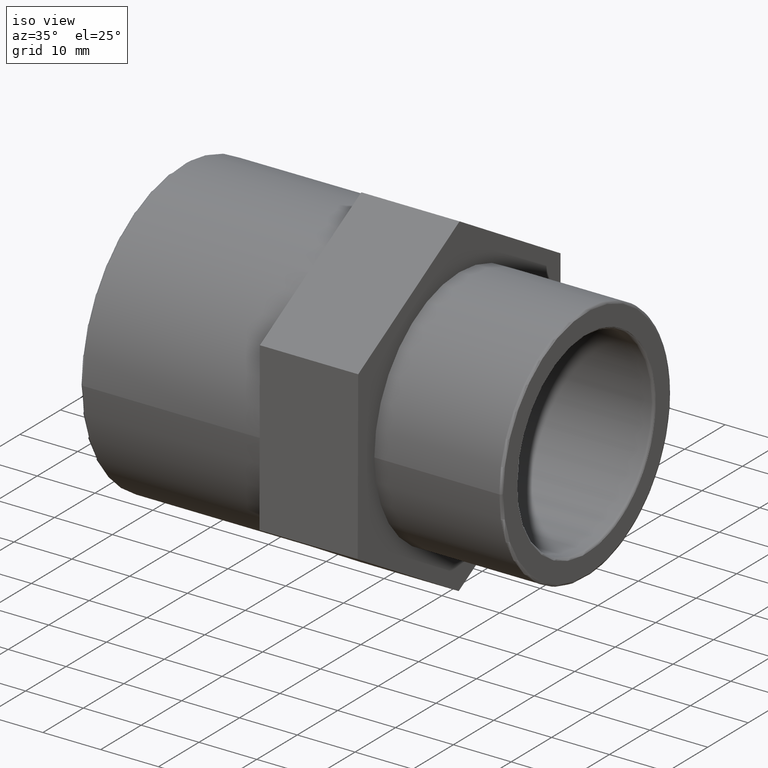
[diagram: clean part render]
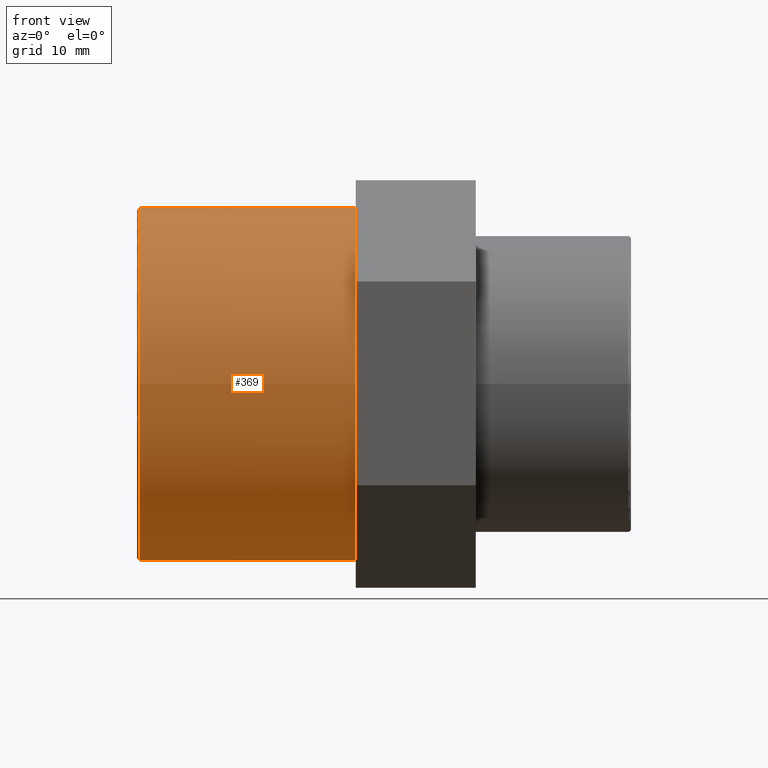
[diagram: tour spotlight — one face highlighted and labeled with its STEP entity id]
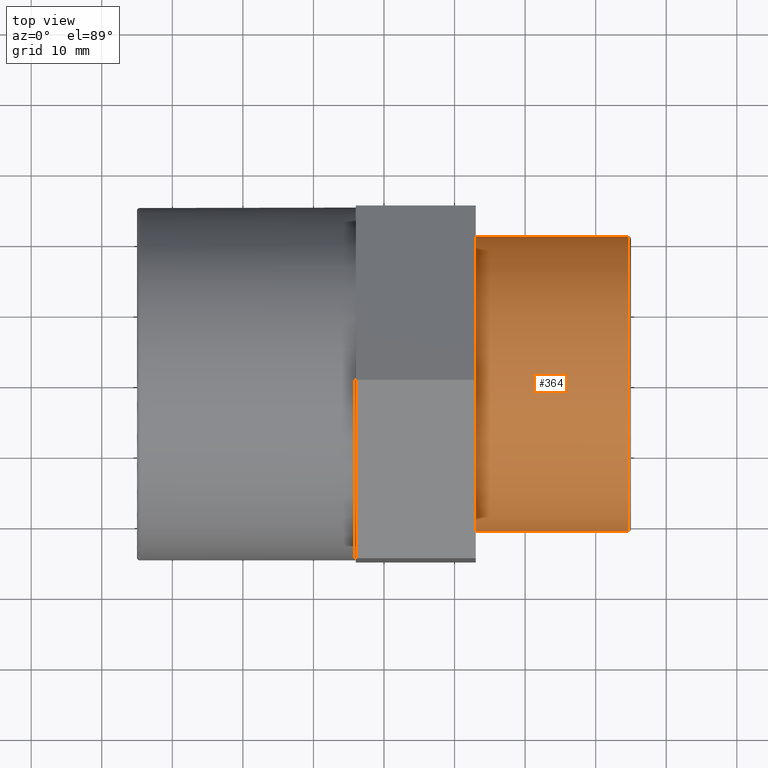
[diagram: tour spotlight — one face highlighted and labeled with its STEP entity id]
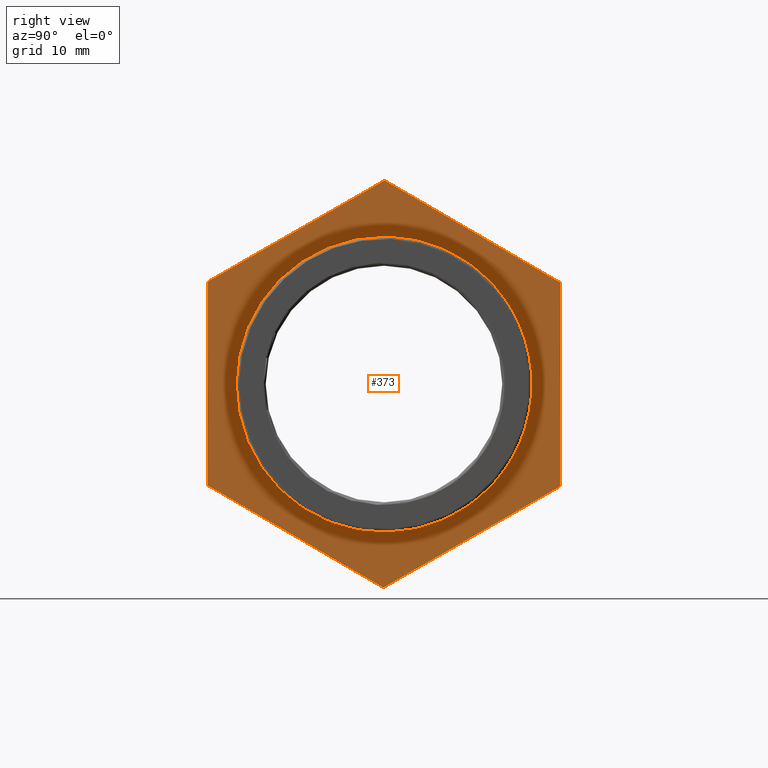
[diagram: tour spotlight — one face highlighted and labeled with its STEP entity id]
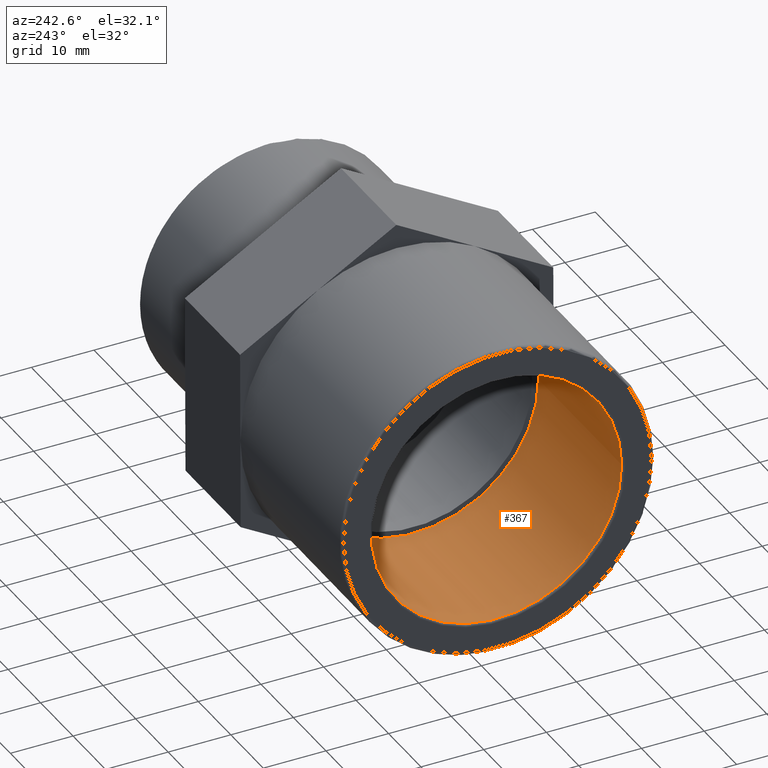
[diagram: tour spotlight — one face highlighted and labeled with its STEP entity id]
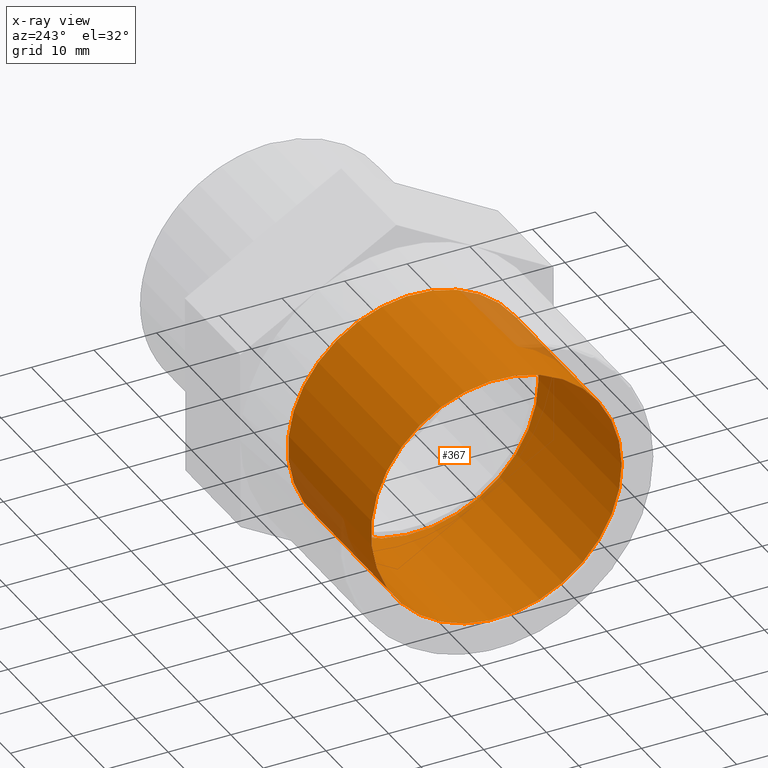
[diagram: x-ray of the same camera — body ghosted, this tour face saturated]
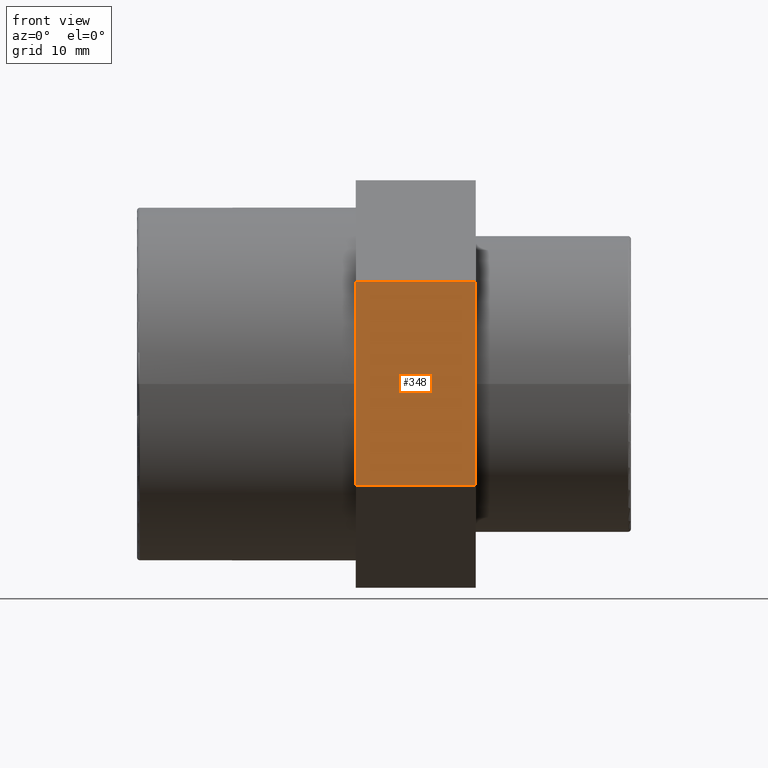
[diagram: tour spotlight — one face highlighted and labeled with its STEP entity id]
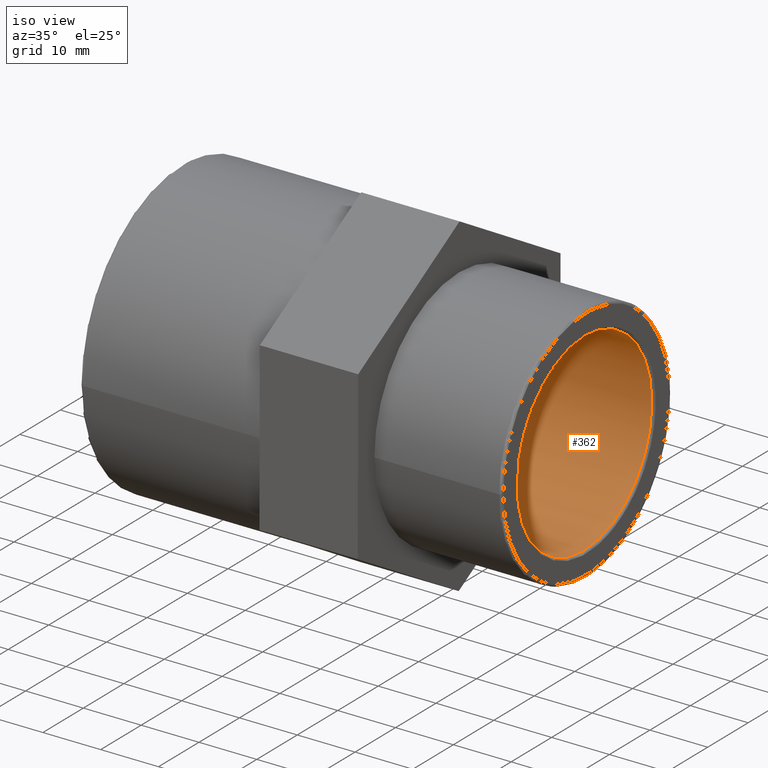
[diagram: tour spotlight — one face highlighted and labeled with its STEP entity id]
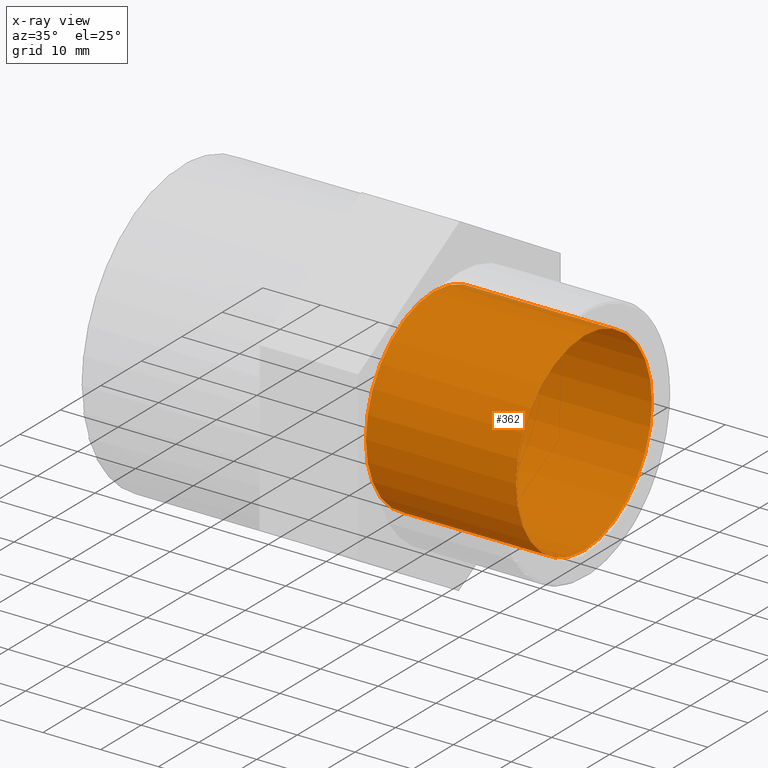
[diagram: x-ray of the same camera — body ghosted, this tour face saturated]
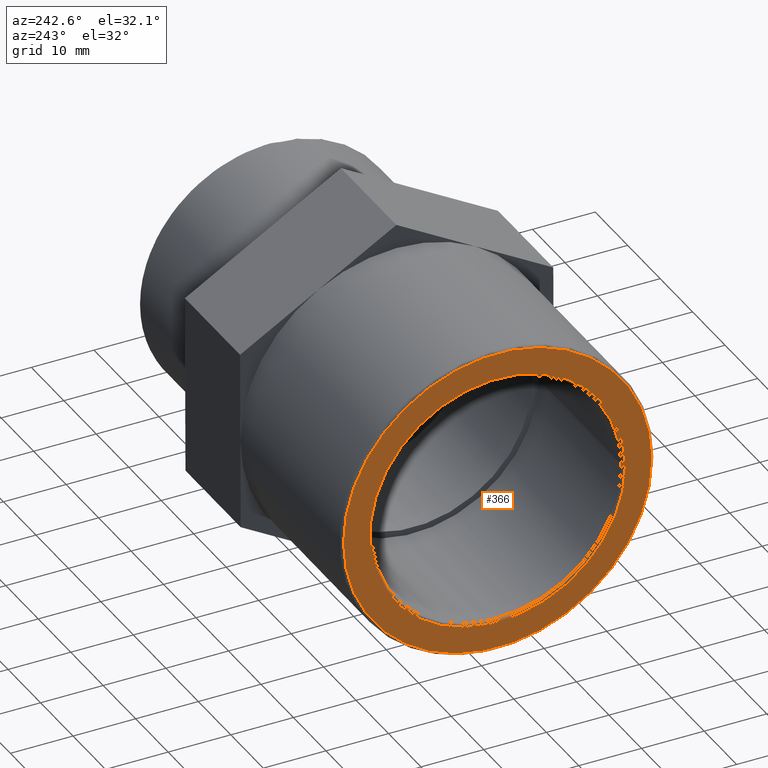
[diagram: tour spotlight — one face highlighted and labeled with its STEP entity id]
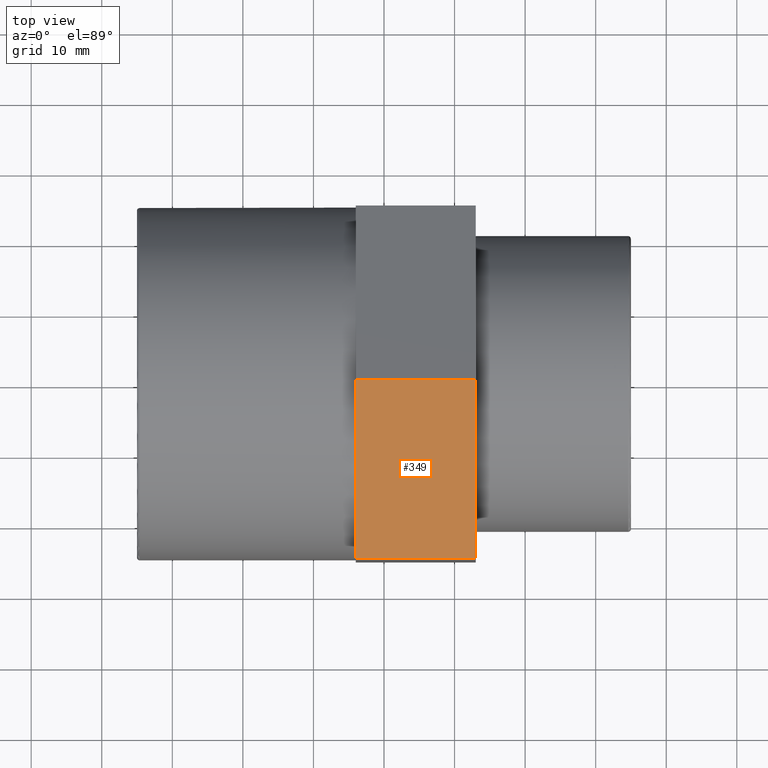
[diagram: tour spotlight — one face highlighted and labeled with its STEP entity id]
A machine part: a face-by-face anatomy tour. The part has 26 B-rep faces; the first image is the clean iso view, then the 8 largest visible faces are spotlighted one at a time (largest first), each with its STEP entity span.

Face 1 — front view, entity #369. In plain terms, the highlighted cylindrical surface (bore or boss wall) has radius 25 mm, axis along (-1, -0, 0).
Definition (entity closure, byte-faithful):
#18=CYLINDRICAL_SURFACE('',#414,25.);
#29=FACE_BOUND('',#114,.T.);
#38=CIRCLE('',#380,25.);
#39=CIRCLE('',#382,25.);
#40=CIRCLE('',#384,25.);
#41=CIRCLE('',#386,25.);
#42=CIRCLE('',#388,25.);
#43=CIRCLE('',#390,25.);
#54=CIRCLE('',#413,25.);
#78=FACE_OUTER_BOUND('',#113,.T.);
#113=EDGE_LOOP('',(#311,#312,#313,#314,#315,#316));
#114=EDGE_LOOP('',(#317));
#174=VERTEX_POINT('',#544);
#178=VERTEX_POINT('',#554);
#181=VERTEX_POINT('',#562);
#182=VERTEX_POINT('',#566);
#183=VERTEX_POINT('',#574);
#184=VERTEX_POINT('',#578);
#199=VERTEX_POINT('',#627);
#215=EDGE_CURVE('',#181,#182,#38,.T.);
#217=EDGE_CURVE('',#178,#181,#39,.T.);
#218=EDGE_CURVE('',#174,#178,#40,.T.);
#219=EDGE_CURVE('',#183,#174,#41,.T.);
#221=EDGE_CURVE('',#184,#183,#42,.T.);
#224=EDGE_CURVE('',#182,#184,#43,.T.);
#242=EDGE_CURVE('',#199,#199,#54,.T.);
#311=ORIENTED_EDGE('',*,*,#215,.T.);
#312=ORIENTED_EDGE('',*,*,#224,.T.);
#313=ORIENTED_EDGE('',*,*,#221,.T.);
#314=ORIENTED_EDGE('',*,*,#219,.T.);
#315=ORIENTED_EDGE('',*,*,#218,.T.);
#316=ORIENTED_EDGE('',*,*,#217,.T.);
#317=ORIENTED_EDGE('',*,*,#242,.F.);
#369=ADVANCED_FACE('',(#78,#29),#18,.T.);
#380=AXIS2_PLACEMENT_3D('',#567,#444,#445);
#382=AXIS2_PLACEMENT_3D('',#570,#449,#450);
#384=AXIS2_PLACEMENT_3D('',#572,#453,#454);
#386=AXIS2_PLACEMENT_3D('',#575,#457,#458);
#388=AXIS2_PLACEMENT_3D('',#579,#462,#463);
#390=AXIS2_PLACEMENT_3D('',#584,#468,#469);
#413=AXIS2_PLACEMENT_3D('',#628,#521,#522);
#414=AXIS2_PLACEMENT_3D('',#629,#523,#524);
#444=DIRECTION('center_axis',(-1.,-6.73555739531044E-16,-3.25955538390483E-32));
#445=DIRECTION('ref_axis',(6.66133814775094E-16,-1.,0.));
#449=DIRECTION('center_axis',(-1.,-6.73555739531044E-16,-3.25955538390483E-32));
#450=DIRECTION('ref_axis',(6.66133814775094E-16,-1.,0.));
#453=DIRECTION('center_axis',(-1.,-6.73555739531044E-16,-3.25955538390483E-32));
#454=DIRECTION('ref_axis',(6.66133814775094E-16,-1.,0.));
#457=DIRECTION('center_axis',(-1.,-6.73555739531044E-16,-3.25955538390483E-32));
#458=DIRECTION('ref_axis',(6.66133814775094E-16,-1.,0.));
#462=DIRECTION('center_axis',(-1.,-6.73555739531044E-16,-3.25955538390483E-32));
#463=DIRECTION('ref_axis',(6.66133814775094E-16,-1.,0.));
#468=DIRECTION('center_axis',(-1.,-6.73555739531044E-16,-3.25955538390483E-32));
#469=DIRECTION('ref_axis',(6.66133814775094E-16,-1.,0.));
#521=DIRECTION('center_axis',(-1.,-6.73555739531044E-16,0.));
#522=DIRECTION('ref_axis',(-6.74460487459783E-16,1.,6.12323399573677E-17));
#523=DIRECTION('center_axis',(-1.,-6.73555739531044E-16,0.));
#524=DIRECTION('ref_axis',(6.66133814775094E-16,-1.,0.));
#544=CARTESIAN_POINT('',(-4.,-24.9998362601667,0.0904818482153302));
#554=CARTESIAN_POINT('',(-4.,-12.4215585509475,21.6957342158633));
#562=CARTESIAN_POINT('',(-4.00000000000002,12.5782777092192,21.605252367648));
#566=CARTESIAN_POINT('',(-4.00000000000003,24.9998362601667,-0.0904818482152971));
#567=CARTESIAN_POINT('Origin',(-4.00000000000001,3.73517273739942E-15,0.));
#570=CARTESIAN_POINT('Origin',(-4.00000000000001,3.73517273739942E-15,0.));
#572=CARTESIAN_POINT('Origin',(-4.00000000000001,3.73517273739942E-15,0.));
#574=CARTESIAN_POINT('',(-4.,-12.5782777092192,-21.605252367648));
#575=CARTESIAN_POINT('Origin',(-4.00000000000001,3.73517273739942E-15,0.));
#578=CARTESIAN_POINT('',(-4.00000000000002,12.4215585509475,-21.6957342158633));
#579=CARTESIAN_POINT('Origin',(-4.00000000000001,3.73517273739942E-15,0.));
#584=CARTESIAN_POINT('Origin',(-4.00000000000001,3.73517273739942E-15,0.));
#627=CARTESIAN_POINT('',(-34.6,-25.,1.53080849893419E-15));
#628=CARTESIAN_POINT('Origin',(-34.6,-1.68756328922505E-14,0.));
#629=CARTESIAN_POINT('Origin',(-19.5,-6.70494122533177E-15,0.));

Face 2 — top view, entity #364. In plain terms, the highlighted cylindrical surface (bore or boss wall) has radius 20.955 mm, axis along (-1, -0, 0).
Definition (entity closure, byte-faithful):
#16=CYLINDRICAL_SURFACE('',#403,20.955);
#24=FACE_BOUND('',#104,.T.);
#48=CIRCLE('',#402,20.955);
#49=CIRCLE('',#404,20.955);
#73=FACE_OUTER_BOUND('',#103,.T.);
#103=EDGE_LOOP('',(#301));
#104=EDGE_LOOP('',(#302));
#193=VERTEX_POINT('',#610);
#194=VERTEX_POINT('',#613);
#236=EDGE_CURVE('',#193,#193,#48,.T.);
#237=EDGE_CURVE('',#194,#194,#49,.T.);
#301=ORIENTED_EDGE('',*,*,#237,.F.);
#302=ORIENTED_EDGE('',*,*,#236,.F.);
#364=ADVANCED_FACE('',(#73,#24),#16,.T.);
#402=AXIS2_PLACEMENT_3D('',#611,#499,#500);
#403=AXIS2_PLACEMENT_3D('',#612,#501,#502);
#404=AXIS2_PLACEMENT_3D('',#614,#503,#504);
#499=DIRECTION('center_axis',(1.,6.73555739531044E-16,0.));
#500=DIRECTION('ref_axis',(-6.72200172986479E-16,1.,6.12323399573677E-17));
#501=DIRECTION('center_axis',(-1.,-6.73555739531044E-16,0.));
#502=DIRECTION('ref_axis',(6.66133814775094E-16,-1.,0.));
#503=DIRECTION('center_axis',(-1.,-6.73555739531044E-16,0.));
#504=DIRECTION('ref_axis',(0.,0.,1.));
#610=CARTESIAN_POINT('',(34.6,-20.955,-3.84937105141992E-15));
#611=CARTESIAN_POINT('Origin',(34.6,2.97344242832977E-14,0.));
#612=CARTESIAN_POINT('Origin',(24.,2.25947334442687E-14,0.));
#613=CARTESIAN_POINT('',(13.,-20.955,0.));
#614=CARTESIAN_POINT('Origin',(13.,1.51856203094272E-14,0.));

Face 3 — right view, entity #373. In plain terms, the highlighted planar face has unit normal (1, 0, 0).
Definition (entity closure, byte-faithful):
#33=FACE_BOUND('',#122,.T.);
#49=CIRCLE('',#404,20.955);
#82=FACE_OUTER_BOUND('',#121,.T.);
#121=EDGE_LOOP('',(#324,#325,#326,#327,#328,#329));
#122=EDGE_LOOP('',(#330));
#123=LINE('',#541,#147);
#128=LINE('',#551,#152);
#132=LINE('',#559,#156);
#142=LINE('',#591,#166);
#145=LINE('',#595,#169);
#146=LINE('',#597,#170);
#147=VECTOR('',#425,28.8675134594813);
#152=VECTOR('',#432,28.8675134594813);
#156=VECTOR('',#438,28.8675134594813);
#166=VECTOR('',#474,28.8675134594813);
#169=VECTOR('',#479,28.8675134594813);
#170=VECTOR('',#482,28.8675134594813);
#171=VERTEX_POINT('',#539);
#172=VERTEX_POINT('',#540);
#176=VERTEX_POINT('',#550);
#179=VERTEX_POINT('',#558);
#187=VERTEX_POINT('',#589);
#188=VERTEX_POINT('',#590);
#194=VERTEX_POINT('',#613);
#202=EDGE_CURVE('',#171,#172,#123,.T.);
#207=EDGE_CURVE('',#172,#176,#128,.T.);
#211=EDGE_CURVE('',#176,#179,#132,.T.);
#227=EDGE_CURVE('',#187,#188,#142,.T.);
#230=EDGE_CURVE('',#188,#171,#145,.T.);
#231=EDGE_CURVE('',#179,#187,#146,.T.);
#237=EDGE_CURVE('',#194,#194,#49,.T.);
#324=ORIENTED_EDGE('',*,*,#230,.F.);
#325=ORIENTED_EDGE('',*,*,#227,.F.);
#326=ORIENTED_EDGE('',*,*,#231,.F.);
#327=ORIENTED_EDGE('',*,*,#211,.F.);
#328=ORIENTED_EDGE('',*,*,#207,.F.);
#329=ORIENTED_EDGE('',*,*,#202,.F.);
#330=ORIENTED_EDGE('',*,*,#237,.T.);
#347=PLANE('',#420);
#373=ADVANCED_FACE('',(#82,#33),#347,.T.);
#404=AXIS2_PLACEMENT_3D('',#614,#503,#504);
#420=AXIS2_PLACEMENT_3D('',#637,#535,#536);
#425=DIRECTION('',(-2.43778272755254E-18,0.00361927392861327,0.999993450406666));
#432=DIRECTION('',(-5.84531452177392E-16,0.867829368634533,0.496862342037901));
#438=DIRECTION('',(-5.8209366944984E-16,0.864210094705921,-0.503131108368766));
#474=DIRECTION('',(5.84531452177392E-16,-0.867829368634533,-0.4968623420379));
#479=DIRECTION('',(5.8209366944984E-16,-0.864210094705921,0.503131108368766));
#482=DIRECTION('',(2.4377827275516E-18,-0.00361927392861188,-0.999993450406666));
#503=DIRECTION('center_axis',(-1.,-6.73555739531044E-16,0.));
#504=DIRECTION('ref_axis',(0.,0.,1.));
#535=DIRECTION('center_axis',(1.,6.73555739531044E-16,0.));
#536=DIRECTION('ref_axis',(0.,0.,-1.));
#539=CARTESIAN_POINT('',(13.,-25.0520759795906,-14.3431803462885));
#540=CARTESIAN_POINT('',(13.,-24.9475965407428,14.5241440427191));
#541=CARTESIAN_POINT('',(13.,-24.9737164004547,7.30731294546721));
#550=CARTESIAN_POINT('',(13.,0.104479438847789,28.8673243890076));
#551=CARTESIAN_POINT('',(13.,-6.15853955604986,25.2815293024355));
#558=CARTESIAN_POINT('',(13.,25.0520759795906,14.3431803462885));
#559=CARTESIAN_POINT('',(13.,18.8151768444049,17.9742163569683));
#589=CARTESIAN_POINT('',(13.,24.9475965407428,-14.5241440427191));
#590=CARTESIAN_POINT('',(13.,-0.104479438847757,-28.8673243890076));
#591=CARTESIAN_POINT('',(13.,6.15853955604988,-25.2815293024355));
#595=CARTESIAN_POINT('',(13.,-18.8151768444049,-17.9742163569683));
#597=CARTESIAN_POINT('',(13.,24.9998362601667,-0.0904818482152943));
#613=CARTESIAN_POINT('',(13.,-20.955,0.));
#614=CARTESIAN_POINT('Origin',(13.,1.51856203094272E-14,0.));
#637=CARTESIAN_POINT('Origin',(13.,-25.,0.));

Face 4 — auxiliary view, entity #367. An x-ray twin of the same camera follows (body ghosted, this face saturated) — the face is partly hidden behind the body. In plain terms, the highlighted cylindrical surface (bore or boss wall) has radius 20 mm, axis along (-1, -0, 0).
Definition (entity closure, byte-faithful):
#17=CYLINDRICAL_SURFACE('',#410,20.);
#27=FACE_BOUND('',#110,.T.);
#51=CIRCLE('',#407,20.);
#53=CIRCLE('',#411,20.);
#76=FACE_OUTER_BOUND('',#109,.T.);
#109=EDGE_LOOP('',(#307));
#110=EDGE_LOOP('',(#308));
#196=VERTEX_POINT('',#618);
#198=VERTEX_POINT('',#624);
#239=EDGE_CURVE('',#196,#196,#51,.T.);
#241=EDGE_CURVE('',#198,#198,#53,.T.);
#307=ORIENTED_EDGE('',*,*,#241,.F.);
#308=ORIENTED_EDGE('',*,*,#239,.F.);
#367=ADVANCED_FACE('',(#76,#27),#17,.F.);
#407=AXIS2_PLACEMENT_3D('',#619,#509,#510);
#410=AXIS2_PLACEMENT_3D('',#623,#515,#516);
#411=AXIS2_PLACEMENT_3D('',#625,#517,#518);
#509=DIRECTION('center_axis',(1.,6.73555739531044E-16,0.));
#510=DIRECTION('ref_axis',(-6.73072708679001E-16,1.,6.12323399573677E-17));
#515=DIRECTION('center_axis',(-1.,-6.73555739531044E-16,0.));
#516=DIRECTION('ref_axis',(6.66133814775094E-16,-1.,0.));
#517=DIRECTION('center_axis',(-1.,-6.73555739531044E-16,0.));
#518=DIRECTION('ref_axis',(0.,0.,1.));
#618=CARTESIAN_POINT('',(-34.6,-20.,-3.67394039744206E-15));
#619=CARTESIAN_POINT('Origin',(-34.6,-1.68756328922505E-14,0.));
#623=CARTESIAN_POINT('Origin',(-22.,-8.38883057415938E-15,0.));
#624=CARTESIAN_POINT('',(-9.,-20.,0.));
#625=CARTESIAN_POINT('Origin',(-9.00000000000001,3.67394039744199E-16,0.));

Face 5 — front view, entity #348. In plain terms, the highlighted planar face has unit normal (0, -1, 0.0036).
Definition (entity closure, byte-faithful):
#57=FACE_OUTER_BOUND('',#83,.T.);
#83=EDGE_LOOP('',(#245,#246,#247,#248,#249));
#123=LINE('',#541,#147);
#124=LINE('',#543,#148);
#125=LINE('',#545,#149);
#126=LINE('',#547,#150);
#127=LINE('',#548,#151);
#147=VECTOR('',#425,28.8675134594813);
#148=VECTOR('',#426,17.);
#149=VECTOR('',#427,14.4337567297406);
#150=VECTOR('',#428,14.4337567297407);
#151=VECTOR('',#429,17.);
#171=VERTEX_POINT('',#539);
#172=VERTEX_POINT('',#540);
#173=VERTEX_POINT('',#542);
#174=VERTEX_POINT('',#544);
#175=VERTEX_POINT('',#546);
#202=EDGE_CURVE('',#171,#172,#123,.T.);
#203=EDGE_CURVE('',#173,#172,#124,.T.);
#204=EDGE_CURVE('',#173,#174,#125,.T.);
#205=EDGE_CURVE('',#174,#175,#126,.T.);
#206=EDGE_CURVE('',#175,#171,#127,.T.);
#245=ORIENTED_EDGE('',*,*,#202,.T.);
#246=ORIENTED_EDGE('',*,*,#203,.F.);
#247=ORIENTED_EDGE('',*,*,#204,.T.);
#248=ORIENTED_EDGE('',*,*,#205,.T.);
#249=ORIENTED_EDGE('',*,*,#206,.T.);
#331=PLANE('',#376);
#348=ADVANCED_FACE('',(#57),#331,.T.);
#376=AXIS2_PLACEMENT_3D('',#538,#423,#424);
#423=DIRECTION('center_axis',(6.96605962739337E-16,-0.999993450406666,0.00361927392861327));
#424=DIRECTION('ref_axis',(0.,-0.00361927392861325,-0.999993450406666));
#425=DIRECTION('',(-2.43778272755254E-18,0.00361927392861327,0.999993450406666));
#426=DIRECTION('',(1.,6.9661052525499E-16,0.));
#427=DIRECTION('',(2.43778272755254E-18,-0.00361927392861327,-0.999993450406666));
#428=DIRECTION('',(2.43778272755254E-18,-0.00361927392861327,-0.999993450406666));
#429=DIRECTION('',(1.,6.9661052525499E-16,0.));
#538=CARTESIAN_POINT('Origin',(-4.,-24.9475965407428,14.5241440427191));
#539=CARTESIAN_POINT('',(13.,-25.0520759795906,-14.3431803462885));
#540=CARTESIAN_POINT('',(13.,-24.9475965407428,14.5241440427191));
#541=CARTESIAN_POINT('',(13.,-24.9737164004547,7.30731294546721));
#542=CARTESIAN_POINT('',(-4.,-24.9475965407428,14.5241440427191));
#543=CARTESIAN_POINT('',(-4.,-24.9475965407428,14.5241440427191));
#544=CARTESIAN_POINT('',(-4.,-24.9998362601667,0.0904818482153302));
#545=CARTESIAN_POINT('',(-4.,-24.9475965407428,14.5241440427191));
#546=CARTESIAN_POINT('',(-4.,-25.0520759795906,-14.3431803462885));
#547=CARTESIAN_POINT('',(-4.,-24.9475965407428,14.5241440427191));
#548=CARTESIAN_POINT('',(-4.,-25.0520759795906,-14.3431803462885));

Face 6 — iso view, entity #362. An x-ray twin of the same camera follows (body ghosted, this face saturated) — the face is partly hidden behind the body. In plain terms, the highlighted cylindrical surface (bore or boss wall) has radius 16.764 mm, axis along (-1, -0, 0).
Definition (entity closure, byte-faithful):
#15=CYLINDRICAL_SURFACE('',#399,16.764);
#22=FACE_BOUND('',#100,.T.);
#44=CIRCLE('',#395,16.764);
#47=CIRCLE('',#400,16.764);
#71=FACE_OUTER_BOUND('',#99,.T.);
#99=EDGE_LOOP('',(#297));
#100=EDGE_LOOP('',(#298));
#189=VERTEX_POINT('',#599);
#192=VERTEX_POINT('',#607);
#232=EDGE_CURVE('',#189,#189,#44,.T.);
#235=EDGE_CURVE('',#192,#192,#47,.T.);
#297=ORIENTED_EDGE('',*,*,#235,.T.);
#298=ORIENTED_EDGE('',*,*,#232,.F.);
#362=ADVANCED_FACE('',(#71,#22),#15,.F.);
#395=AXIS2_PLACEMENT_3D('',#600,#485,#486);
#399=AXIS2_PLACEMENT_3D('',#606,#493,#494);
#400=AXIS2_PLACEMENT_3D('',#608,#495,#496);
#485=DIRECTION('center_axis',(-1.,-6.73555739531044E-16,0.));
#486=DIRECTION('ref_axis',(-6.74683671162537E-16,1.,6.12323399573677E-17));
#493=DIRECTION('center_axis',(-1.,-6.73555739531044E-16,0.));
#494=DIRECTION('ref_axis',(6.66133814775094E-16,-1.,0.));
#495=DIRECTION('center_axis',(-1.,-6.73555739531044E-16,0.));
#496=DIRECTION('ref_axis',(0.,0.,1.));
#599=CARTESIAN_POINT('',(34.6,-16.764,1.02649894704531E-15));
#600=CARTESIAN_POINT('Origin',(34.6,2.97344242832977E-14,0.));
#606=CARTESIAN_POINT('Origin',(21.8,2.11129108173004E-14,0.));
#607=CARTESIAN_POINT('',(8.60000000000002,-16.764,0.));
#608=CARTESIAN_POINT('Origin',(8.60000000000001,1.22219750554906E-14,0.));

Face 7 — auxiliary view, entity #366. In plain terms, the highlighted planar face has unit normal (-1, -0, 0).
Definition (entity closure, byte-faithful):
#26=FACE_BOUND('',#108,.T.);
#50=CIRCLE('',#406,20.4);
#52=CIRCLE('',#409,24.6);
#75=FACE_OUTER_BOUND('',#107,.T.);
#107=EDGE_LOOP('',(#305));
#108=EDGE_LOOP('',(#306));
#195=VERTEX_POINT('',#616);
#197=VERTEX_POINT('',#621);
#238=EDGE_CURVE('',#195,#195,#50,.T.);
#240=EDGE_CURVE('',#197,#197,#52,.T.);
#305=ORIENTED_EDGE('',*,*,#240,.F.);
#306=ORIENTED_EDGE('',*,*,#238,.F.);
#344=PLANE('',#408);
#366=ADVANCED_FACE('',(#75,#26),#344,.T.);
#406=AXIS2_PLACEMENT_3D('',#617,#507,#508);
#408=AXIS2_PLACEMENT_3D('',#620,#511,#512);
#409=AXIS2_PLACEMENT_3D('',#622,#513,#514);
#507=DIRECTION('center_axis',(-1.,-6.73555739531044E-16,0.));
#508=DIRECTION('ref_axis',(-6.73555739531044E-16,1.,6.12323399573677E-17));
#511=DIRECTION('center_axis',(-1.,-6.73555739531044E-16,0.));
#512=DIRECTION('ref_axis',(0.,0.,1.));
#513=DIRECTION('center_axis',(1.,6.73555739531044E-16,0.));
#514=DIRECTION('ref_axis',(-6.73555739531044E-16,1.,6.12323399573676E-17));
#616=CARTESIAN_POINT('',(-35.,-20.4,1.2491397351303E-15));
#617=CARTESIAN_POINT('Origin',(-35.,-1.71450551880629E-14,0.));
#620=CARTESIAN_POINT('Origin',(-35.,-20.,0.));
#621=CARTESIAN_POINT('',(-35.,-24.6,-4.51894668885373E-15));
#622=CARTESIAN_POINT('Origin',(-35.,-1.71450551880629E-14,0.));

Face 8 — top view, entity #349. In plain terms, the highlighted planar face has unit normal (0, -0.4969, 0.8678).
Definition (entity closure, byte-faithful):
#58=FACE_OUTER_BOUND('',#84,.T.);
#84=EDGE_LOOP('',(#250,#251,#252,#253,#254));
#124=LINE('',#543,#148);
#128=LINE('',#551,#152);
#129=LINE('',#553,#153);
#130=LINE('',#555,#154);
#131=LINE('',#556,#155);
#148=VECTOR('',#426,17.);
#152=VECTOR('',#432,28.8675134594813);
#153=VECTOR('',#433,17.);
#154=VECTOR('',#434,14.4337567297407);
#155=VECTOR('',#435,14.4337567297406);
#172=VERTEX_POINT('',#540);
#173=VERTEX_POINT('',#542);
#176=VERTEX_POINT('',#550);
#177=VERTEX_POINT('',#552);
#178=VERTEX_POINT('',#554);
#203=EDGE_CURVE('',#173,#172,#124,.T.);
#207=EDGE_CURVE('',#172,#176,#128,.T.);
#208=EDGE_CURVE('',#177,#176,#129,.T.);
#209=EDGE_CURVE('',#177,#178,#130,.T.);
#210=EDGE_CURVE('',#178,#173,#131,.T.);
#250=ORIENTED_EDGE('',*,*,#207,.T.);
#251=ORIENTED_EDGE('',*,*,#208,.F.);
#252=ORIENTED_EDGE('',*,*,#209,.T.);
#253=ORIENTED_EDGE('',*,*,#210,.T.);
#254=ORIENTED_EDGE('',*,*,#203,.T.);
#332=PLANE('',#377);
#349=ADVANCED_FACE('',(#58),#332,.T.);
#377=AXIS2_PLACEMENT_3D('',#549,#430,#431);
#426=DIRECTION('',(1.,6.9661052525499E-16,0.));
#430=DIRECTION('center_axis',(3.46119537066446E-16,-0.496862342037901,0.867829368634533));
#431=DIRECTION('ref_axis',(6.21724893790088E-16,-0.867829368634533,-0.496862342037901));
#432=DIRECTION('',(-5.84531452177392E-16,0.867829368634533,0.496862342037901));
#433=DIRECTION('',(1.,6.9661052525499E-16,0.));
#434=DIRECTION('',(5.84531452177392E-16,-0.867829368634533,-0.496862342037901));
#435=DIRECTION('',(5.84531452177392E-16,-0.867829368634533,-0.496862342037901));
#540=CARTESIAN_POINT('',(13.,-24.9475965407428,14.5241440427191));
#542=CARTESIAN_POINT('',(-4.,-24.9475965407428,14.5241440427191));
#543=CARTESIAN_POINT('',(-4.,-24.9475965407428,14.5241440427191));
#549=CARTESIAN_POINT('Origin',(-4.00000000000001,0.104479438847777,28.8673243890076));
#550=CARTESIAN_POINT('',(13.,0.104479438847789,28.8673243890076));
#551=CARTESIAN_POINT('',(13.,-6.15853955604986,25.2815293024355));
#552=CARTESIAN_POINT('',(-4.00000000000001,0.104479438847777,28.8673243890076));
#553=CARTESIAN_POINT('',(-4.00000000000001,0.104479438847777,28.8673243890076));
#554=CARTESIAN_POINT('',(-4.,-12.4215585509475,21.6957342158633));
#555=CARTESIAN_POINT('',(-4.00000000000001,0.104479438847777,28.8673243890076));
#556=CARTESIAN_POINT('',(-4.00000000000001,0.104479438847777,28.8673243890076));